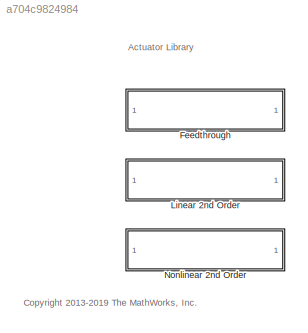
MODEL slx_a704c9824984
KIND library
CONFIG AbsTol = auto
CONFIG EnableMultiTasking = on
CONFIG FixedStep = auto
CONFIG MaxStep = auto
CONFIG MinStep = auto
CONFIG RelTol = 1e-3
CONFIG SampleTimeConstraint = Unconstrained
CONFIG SolverName = ode45
CONFIG StartTime = 0.0
CONFIG StopTime = 10.0
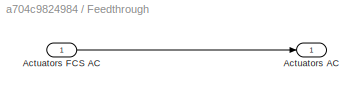
BLOCK [SubSystem] Feedthrough
  VariantControl = Variants.Actuators == 0
BLOCK [Outport] Feedthrough/Actuators AC
  VectorParamsAs1DForOutWhenUnconnected = off
BLOCK [Inport] Feedthrough/Actuators FCS AC
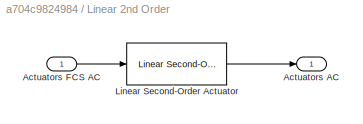
BLOCK [SubSystem] Linear 2nd Order
  VariantControl = Variants.Actuators == 1
BLOCK [Outport] Linear 2nd Order/Actuators AC
  VectorParamsAs1DForOutWhenUnconnected = off
BLOCK [Inport] Linear 2nd Order/Actuators FCS AC
BLOCK [Reference] Linear 2nd Order/Linear Second-Order Actuator  REF=aerolibactuator/Linear Second-Order Actuator
  SourceBlock = aerolibactuator/Linear Second-Order Actuator
  SourceType = LinearSecondOrderActuator
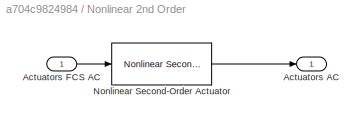
BLOCK [SubSystem] Nonlinear 2nd Order
  VariantControl = Variants.Actuators == 2
BLOCK [Outport] Nonlinear 2nd Order/Actuators AC
  VectorParamsAs1DForOutWhenUnconnected = off
BLOCK [Inport] Nonlinear 2nd Order/Actuators FCS AC
BLOCK [Reference] Nonlinear 2nd Order/Nonlinear Second-Order Actuator  REF=aerolibactuator/Nonlinear Second-Order Actuator
  SourceBlock = aerolibactuator/Nonlinear Second-Order Actuator
  SourceType = NonlinearSecondOrderActuator
ANNOTATION (root): Actuator Library
ANNOTATION (root): <copyright redacted>
LINE Feedthrough/Actuators FCS AC:1 -> Feedthrough/Actuators AC:1
LINE Linear 2nd Order/Actuators FCS AC:1 -> Linear 2nd Order/Linear Second-Order Actuator:1
LINE Linear 2nd Order/Linear Second-Order Actuator:1 -> Linear 2nd Order/Actuators AC:1
LINE Nonlinear 2nd Order/Actuators FCS AC:1 -> Nonlinear 2nd Order/Nonlinear Second-Order Actuator:1
LINE Nonlinear 2nd Order/Nonlinear Second-Order Actuator:1 -> Nonlinear 2nd Order/Actuators AC:1
